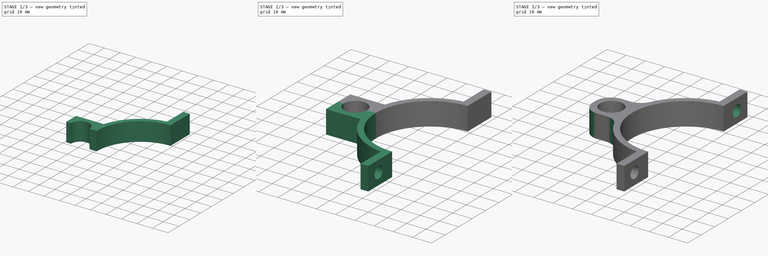
[diagram: build sequence overview — one tinted view per stage of 3, left to right]
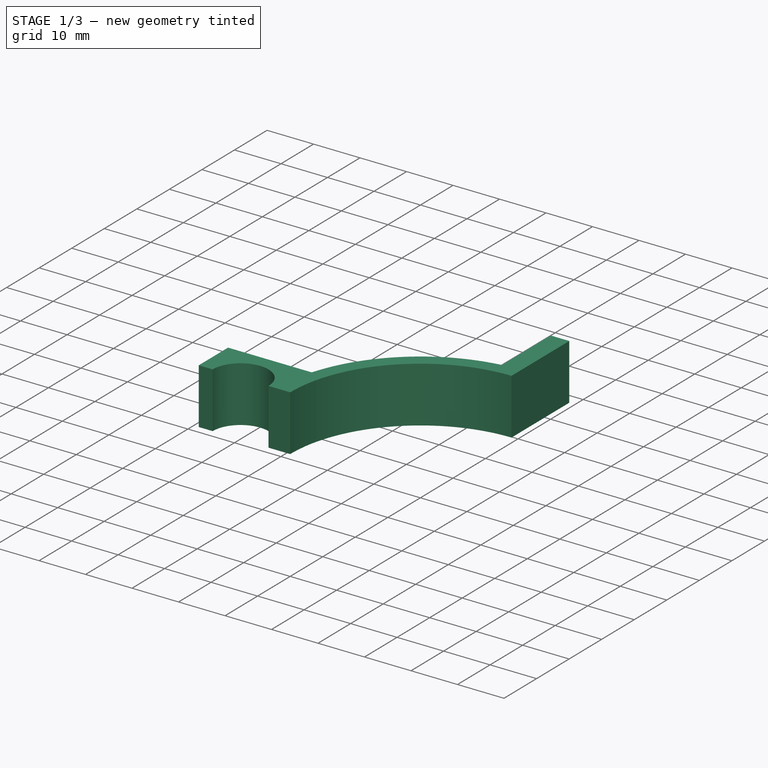
[diagram: stage 1 of 3 — iso view after this stage's code; geometry added in this stage tinted green]
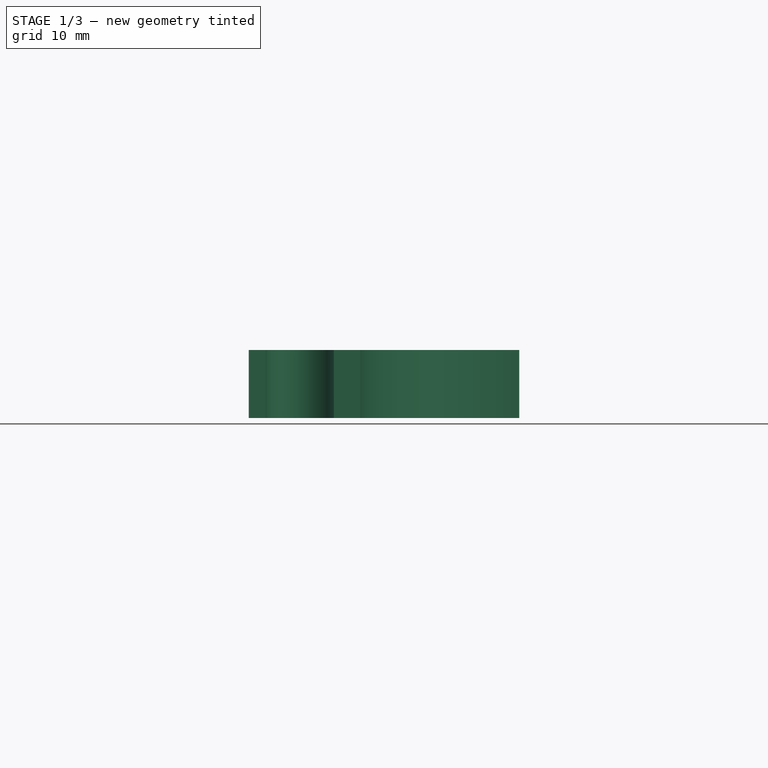
[diagram: stage 1 of 3 — front view after this stage's code; geometry added in this stage tinted green]
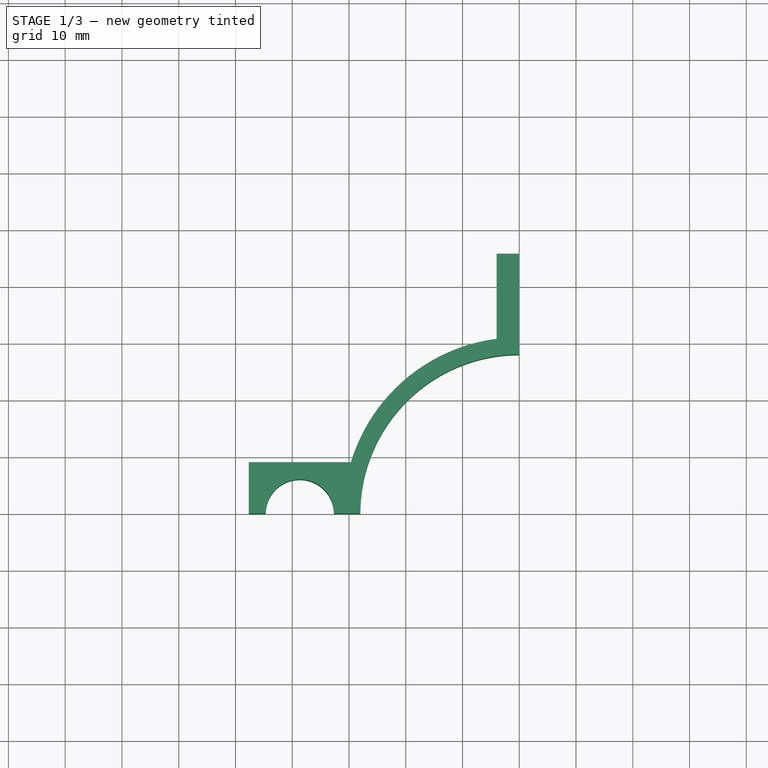
[diagram: stage 1 of 3 — top view after this stage's code; geometry added in this stage tinted green]
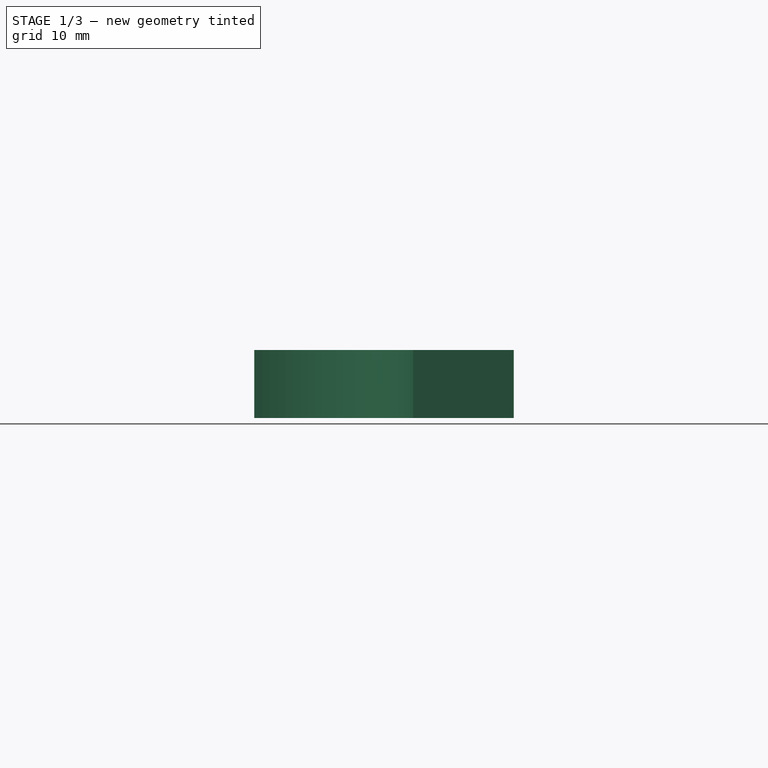
[diagram: stage 1 of 3 — right view after this stage's code; geometry added in this stage tinted green]
FCSTD DOCUMENT  (FreeCAD 0.22R37573 (Git))
Label: bike collar
License: All rights reserved
LicenseURL: http://en.wikipedia.org/wiki/All_rights_reserved
objects: Sketcher::SketchObject×2, PartDesign::Pad×2, PartDesign::Mirrored×2, PartDesign::MultiTransform×1, PartDesign::Pocket×1, PartDesign::Fillet×1, PartDesign::Body×1
note: 14 computed .brp shape members not serialized (recipe doc carries the construction recipe); baked Part::Feature solids carry a one-line shape summary decoded from their .brp

FEATURE [Sketcher::SketchObject] Sketch
  AttachmentSupport = -> [XY_Plane]
  FullyConstrained = false
  MapMode = 5
  Support = -> [XY_Plane]
  sketch-geometry (12):
    g0: ArcOfCircle CenterX=0 CenterY=0 CenterZ=0 NormalX=0 NormalY=0 NormalZ=1 AngleXU=0 Radius=28 StartAngle=1.5708 EndAngle=3.14159
    g1: ArcOfCircle CenterX=0 CenterY=0 CenterZ=0 NormalX=0 NormalY=0 NormalZ=1 AngleXU=0 Radius=31 StartAngle=1.70019 EndAngle=2.84703
    g2: LineSegment StartX=-4 StartY=30.7409 StartZ=0 EndX=-4 EndY=45.7409 EndZ=0
    g3: LineSegment StartX=-4 StartY=45.7409 StartZ=0 EndX=0 EndY=45.7409 EndZ=0
    g4: LineSegment StartX=-29.6648 StartY=9 StartZ=0 EndX=-47.6648 EndY=9 EndZ=0
    g5: LineSegment StartX=-47.6648 StartY=9 StartZ=0 EndX=-47.6648 EndY=0 EndZ=0
    g6: LineSegment StartX=-15.0642 StartY=27.0937 StartZ=0 EndX=-13.6063 EndY=24.4718 EndZ=0
    g7: LineSegment StartX=-47.6648 StartY=0 StartZ=0 EndX=-44.6648 EndY=7e-16 EndZ=0
    g8: LineSegment StartX=-32.6648 StartY=0 StartZ=0 EndX=-28 EndY=3.4e-15 EndZ=0
    g9: LineSegment StartX=0 StartY=45.7409 StartZ=0 EndX=1.7e-15 EndY=28 EndZ=0
    g10: ArcOfCircle CenterX=-38.6648 CenterY=0 CenterZ=0 NormalX=0 NormalY=0 NormalZ=1 AngleXU=0 Radius=6 StartAngle=0 EndAngle=3.14159
    g11: LineSegment StartX=-38.6648 StartY=9 StartZ=0 EndX=-38.6648 EndY=6 EndZ=0
  constraints (37):
    c: Coincident(g0,g-1)
    c: PointOnObject(g0,g-2)
    c: Coincident(g1,g0)
    c: Vertical(g2)
    c: Coincident(g2,g3)
    c: PointOnObject(g3,g-2)
    c: Horizontal(g3)
    c: Horizontal(g4)
    c: Coincident(g1,g4)
    c: PointOnObject(g7,g-1)
    c: PointOnObject(g8,g-1)
    c: Coincident(g4,g5)
    c: PointOnObject(g5,g-1)
    c: Vertical(g5)
    c: PointOnObject(g0,g-1)
    c: Distance(g3,g3) = 4
    c: Coincident(g2,g1)
    c: PointOnObject(g6,g1)
    c: PointOnObject(g6,g0)
    c: Perpendicular(g0,g6)
    c: Distance(g6,g6) = 3
    c: Distance(g2,g2) = 15
    c: Coincident(g7,g5)
    c: Coincident(g8,g0)
    c: Coincident(g9,g3)
    c: Coincident(g9,g0)
    c: PointOnObject(g10,g-1)
    c: Coincident(g10,g8)
    c: Coincident(g10,g7)
    c: Radius(g10) = 6
    c: DistanceX(g8,g1) = 3
    c: DistanceX(g5,g7) = 3
    c: Diameter(g0) = 56
    c: Symmetric(g4,g4,g11)
    c: PointOnObject(g11,g10)
    c: Vertical(g11)
    c: DistanceY(g11,g11) = 3
FEATURE [PartDesign::Pad] Pad
  Direction = (0,0,1)
  Length = 12
  Length2 = 10
  Profile = -> Sketch
  ReferenceAxis = -> Sketch [N_Axis]
  Suppressed = false
  Type = 0
FEATURE [PartDesign::Pad] Pad001
  BaseFeature = -> Pad
  Direction = (0,0,1)
  Length = 12
  Length2 = 10
  Profile = -> Sketch
  ReferenceAxis = -> Sketch [N_Axis]
  Suppressed = false
  Type = 0
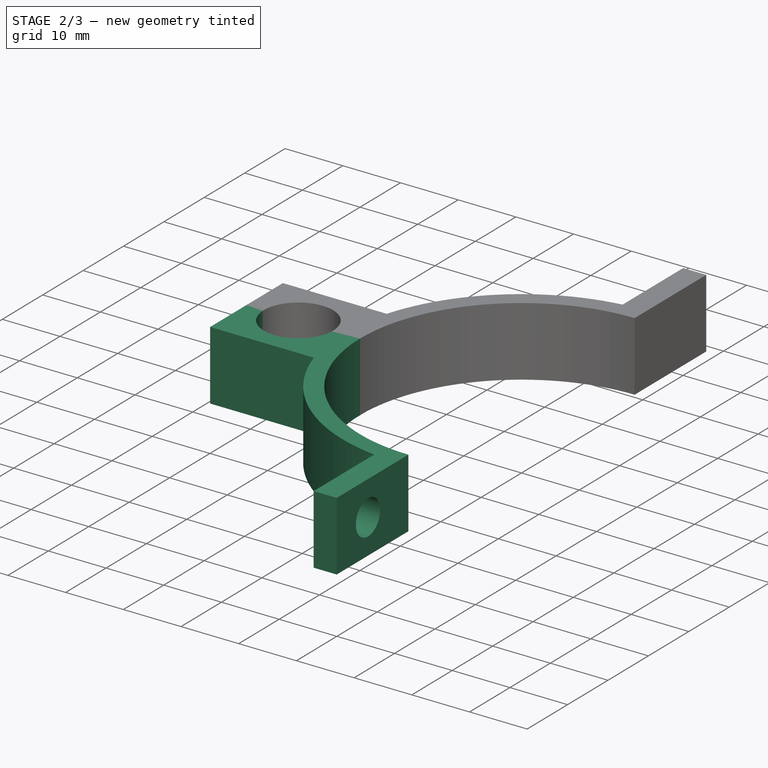
[diagram: stage 2 of 3 — iso view after this stage's code; geometry added in this stage tinted green]
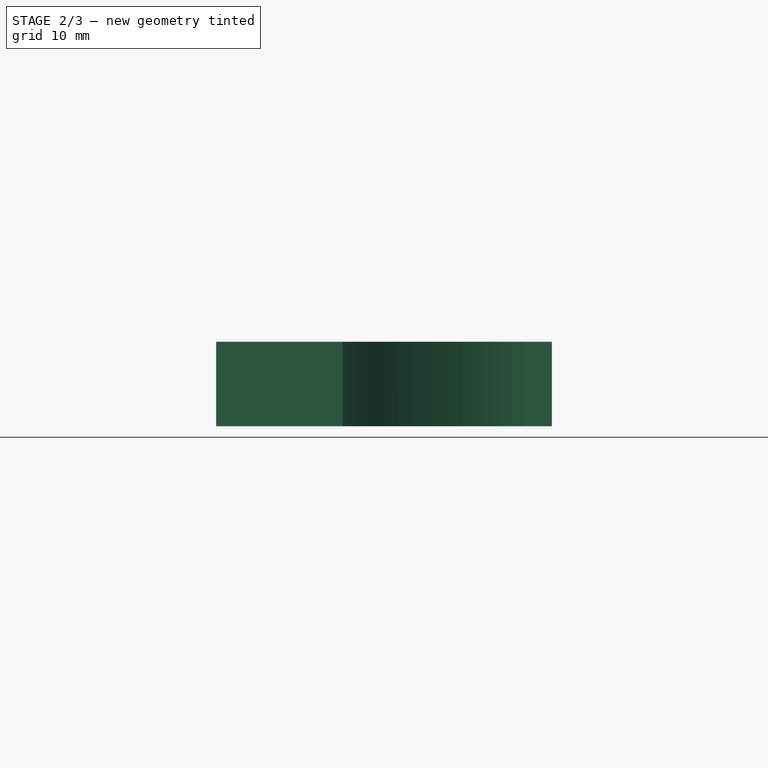
[diagram: stage 2 of 3 — front view after this stage's code; geometry added in this stage tinted green]
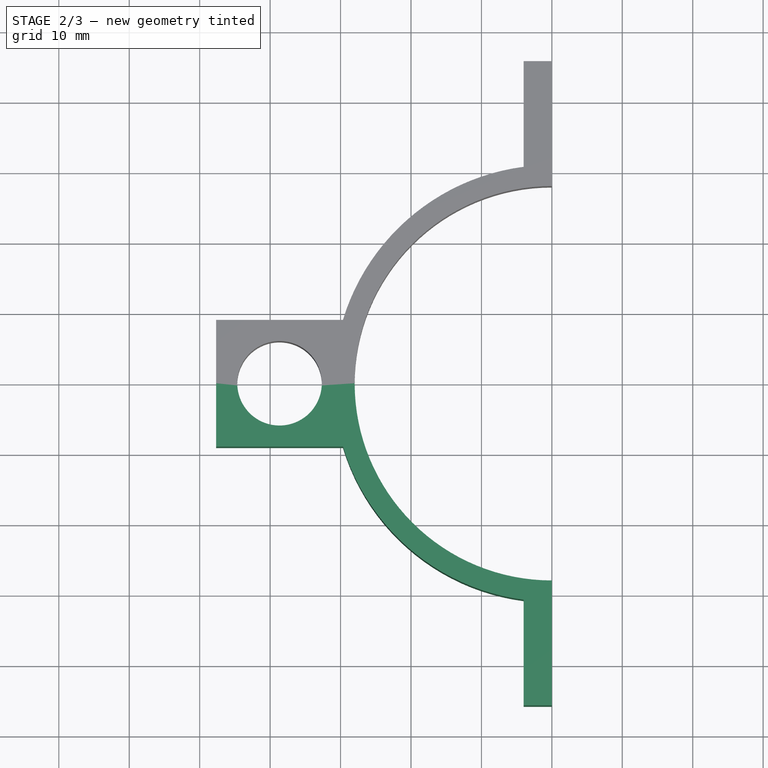
[diagram: stage 2 of 3 — top view after this stage's code; geometry added in this stage tinted green]
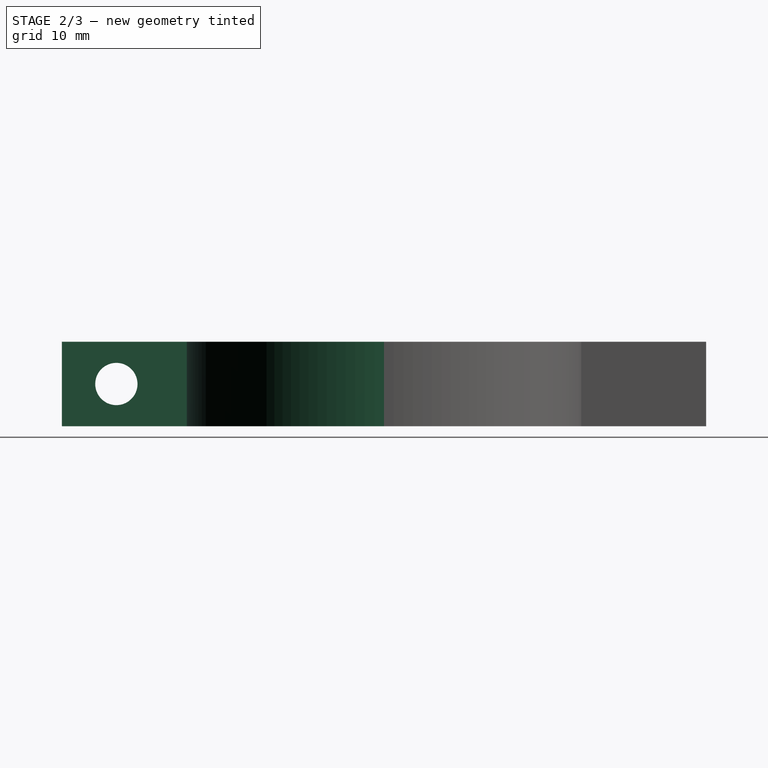
[diagram: stage 2 of 3 — right view after this stage's code; geometry added in this stage tinted green]
FEATURE [Sketcher::SketchObject] Sketch001
  AttachmentSupport = -> [YZ_Plane]
  FullyConstrained = false
  MapMode = 5
  Placement = pos=(0,0,0) rot=(0.57735,0.57735,0.57735;2.0944rad)
  Support = -> [YZ_Plane]
  sketch-geometry (1):
    g0: Circle CenterX=-38 CenterY=6 CenterZ=0 NormalX=0 NormalY=0 NormalZ=1 AngleXU=0 Radius=3
  constraints (2):
    c: DistanceX(g0,g-1) = 38
    c: Diameter(g0) = 6
FEATURE [PartDesign::Mirrored] Mirrored001
  MirrorPlane = -> Sketch [H_Axis]
  Suppressed = false
FEATURE [PartDesign::MultiTransform] MultiTransform
  BaseFeature = -> Pad001
  Originals = -> [Pad001]
  Suppressed = false
  Transformations = -> [Mirrored001]
FEATURE [PartDesign::Pocket] Pocket
  BaseFeature = -> MultiTransform
  Direction = (-1,0,0)
  Length = 5
  Length2 = 5
  Midplane = true
  Profile = -> Sketch001
  ReferenceAxis = -> Sketch001 [N_Axis]
  Suppressed = false
  Type = 1
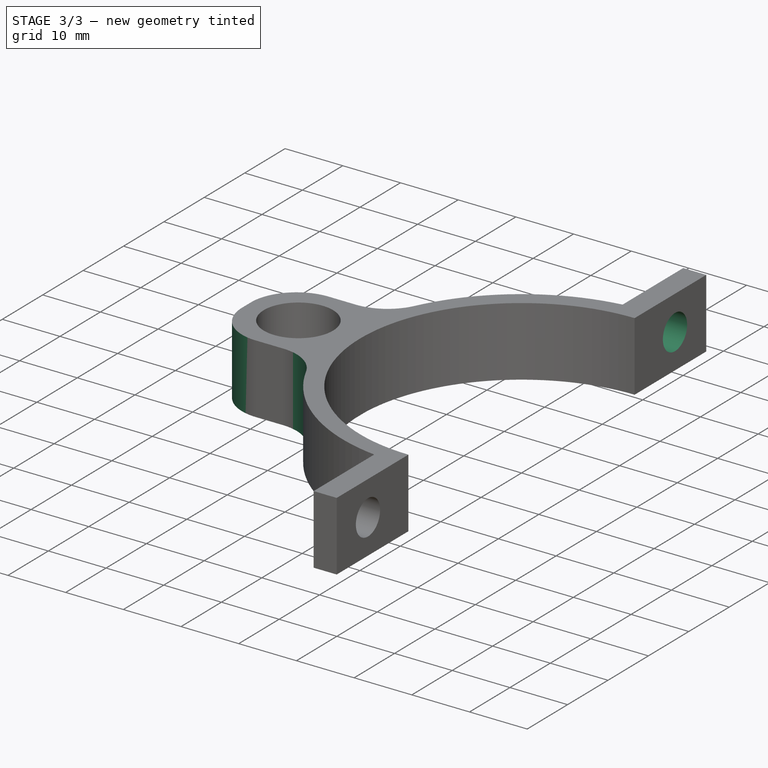
[diagram: stage 3 of 3 — iso view after this stage's code; geometry added in this stage tinted green]
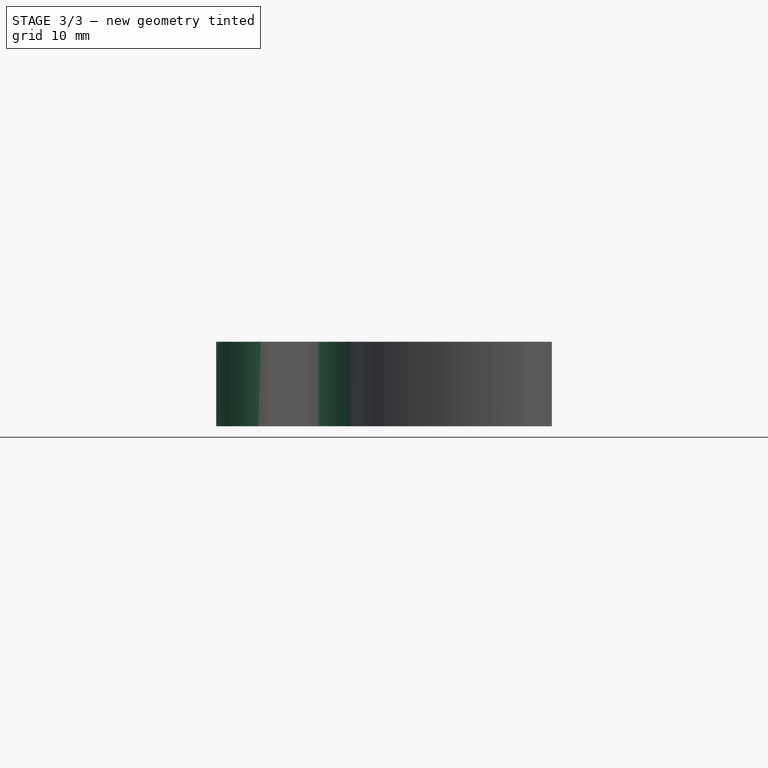
[diagram: stage 3 of 3 — front view after this stage's code; geometry added in this stage tinted green]
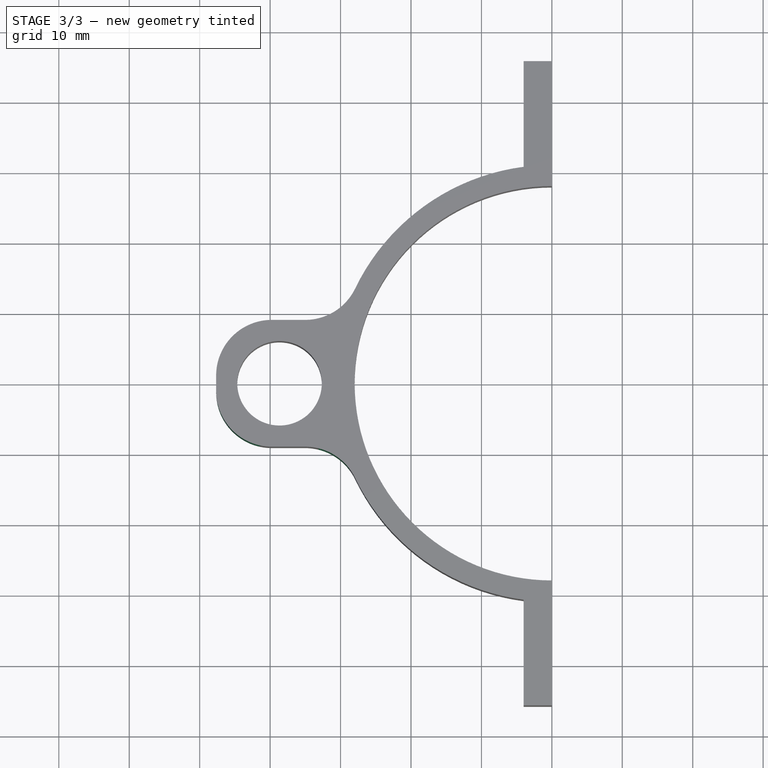
[diagram: stage 3 of 3 — top view after this stage's code; geometry added in this stage tinted green]
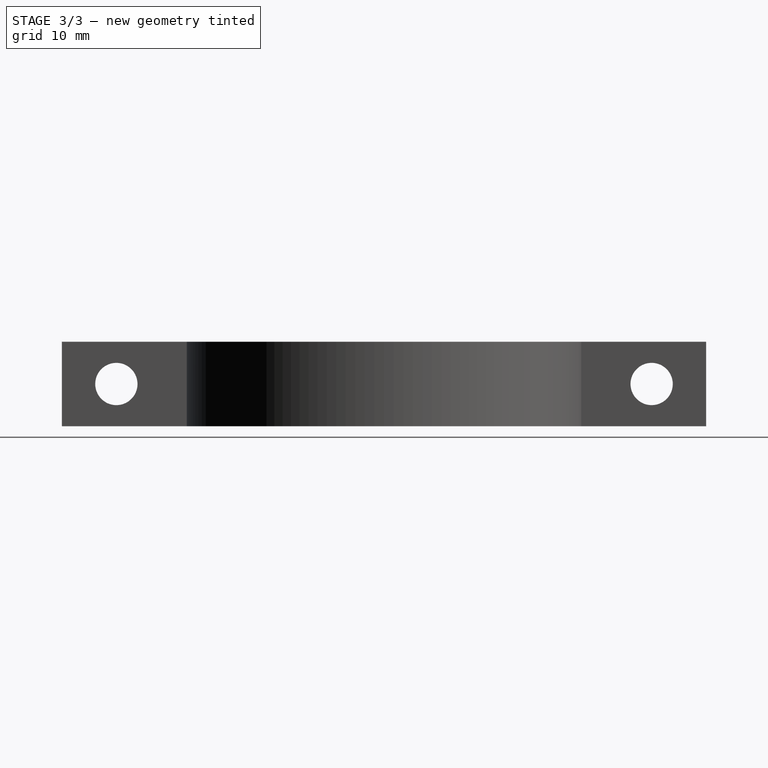
[diagram: stage 3 of 3 — right view after this stage's code; geometry added in this stage tinted green]
FEATURE [PartDesign::Mirrored] Mirrored
  BaseFeature = -> Pocket
  MirrorPlane = -> Sketch001 [V_Axis]
  Originals = -> [Pocket]
  Suppressed = false
FEATURE [PartDesign::Fillet] Fillet
  Base = -> Mirrored [Edge28,Edge56,Edge57,Edge6]
  BaseFeature = -> Mirrored
  Radius = 7.9
  SupportTransform = false
  Suppressed = false
  UseAllEdges = false
FEATURE [PartDesign::Body] Body
  AllowCompound = false
  Group = -> [Sketch,Pad,Pad001,MultiTransform,Mirrored001,Sketch001,Pocket,Mirrored,Fillet]
  Origin = -> Origin
  Tip = -> Fillet
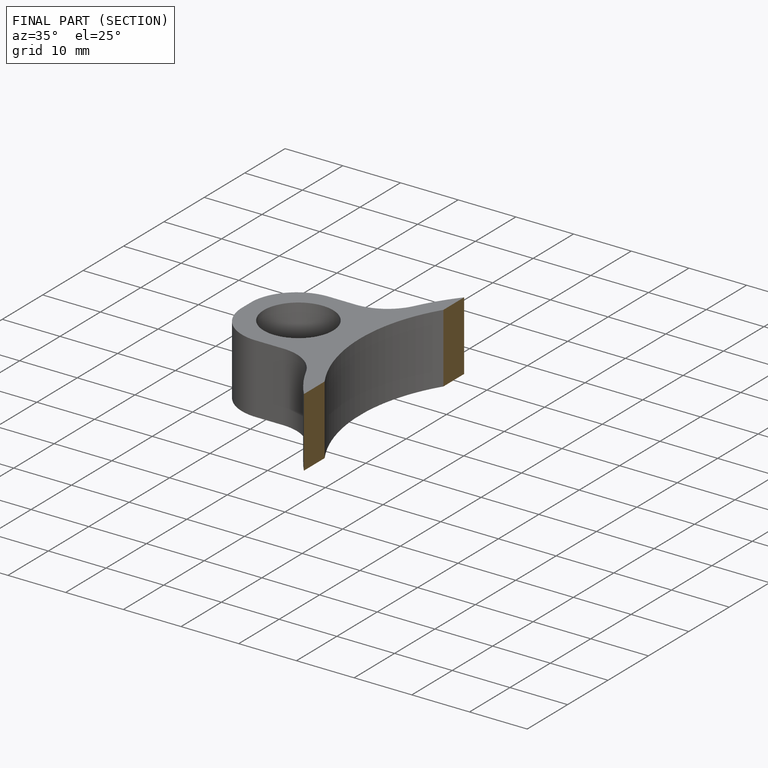
[diagram: finished part — half-section view (interior)]
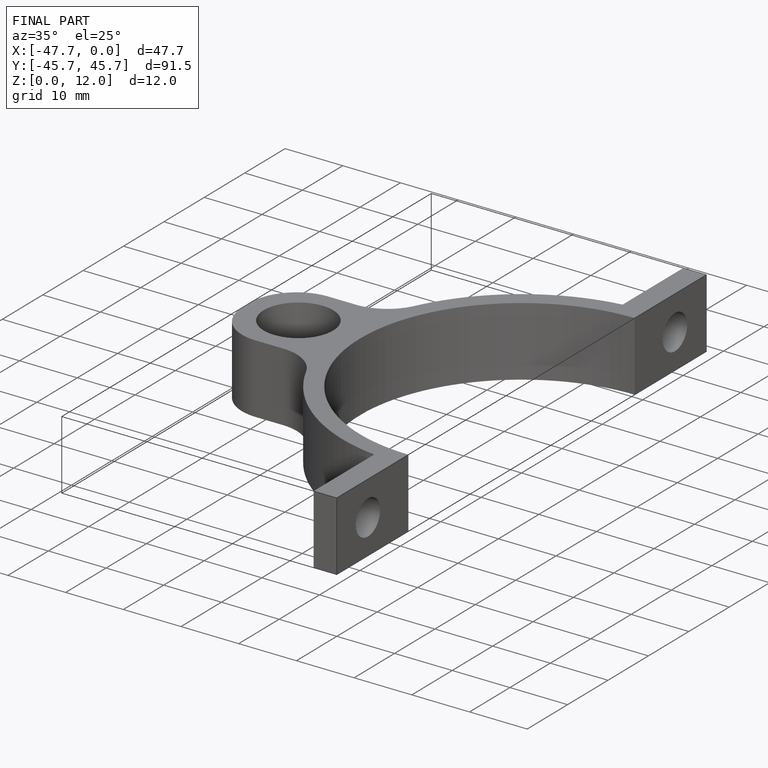
[diagram: finished part — iso view with bounding-box wireframe]
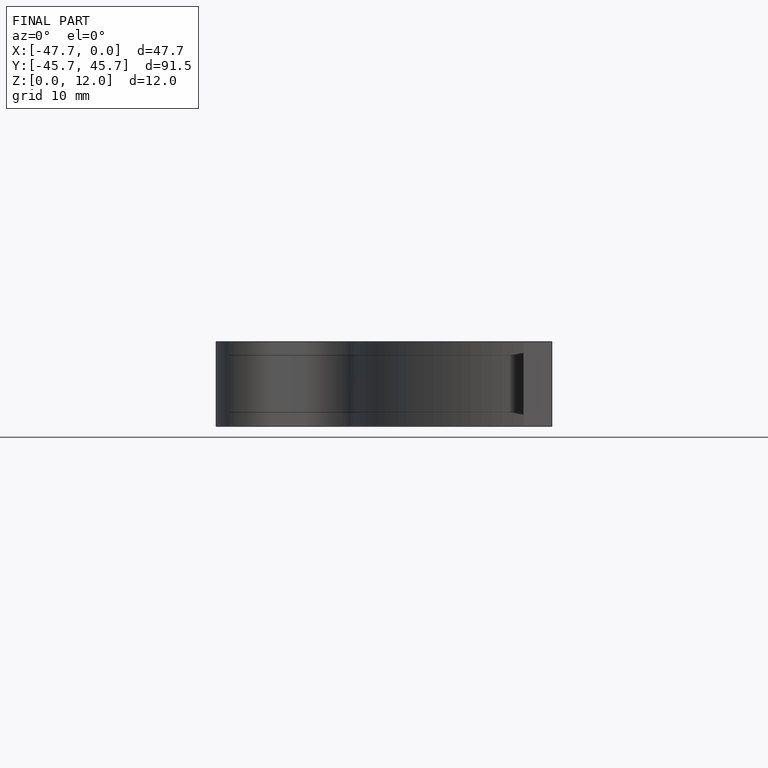
[diagram: finished part — front view with bounding-box wireframe]
